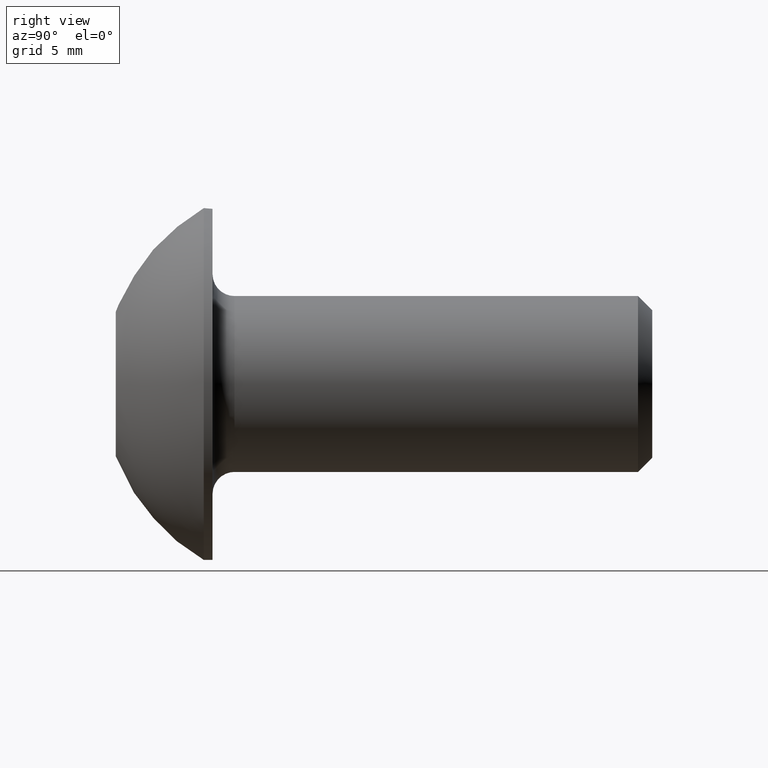
[diagram: clean part render]
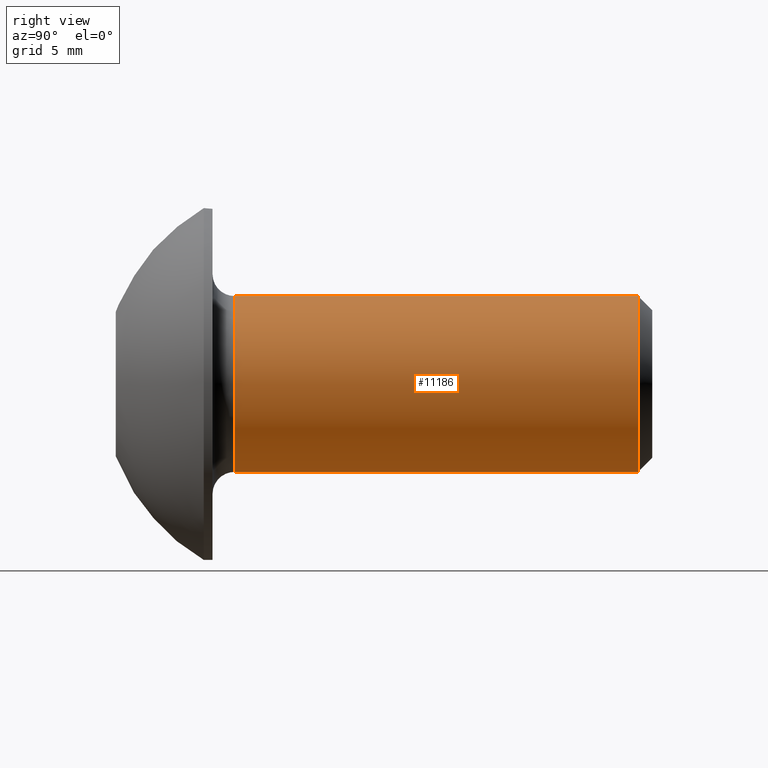
[diagram: same view with one face highlighted and labeled with its STEP entity id]
A machine part, right view. The second image highlights one B-rep face of the part: STEP entity #11186.
In plain terms, the highlighted cylindrical surface (bore or boss wall) has radius 4 mm, axis along (-0, -1, -0).
Its self-contained STEP definition (entity closure, byte-faithful):
#399 = DIRECTION ( 'NONE',  ( -0.000000000000000000, -1.000000000000000000, -0.000000000000000000 ) ) ;
#721 = AXIS2_PLACEMENT_3D ( 'NONE', #6130, #399, #8450 ) ;
#3008 = DIRECTION ( 'NONE',  ( 0.000000000000000000, 0.000000000000000000, -1.000000000000000000 ) ) ;
#3015 = CYLINDRICAL_SURFACE ( 'NONE', #721, 3.999999999999996447 ) ;
#3223 = DIRECTION ( 'NONE',  ( 0.000000000000000000, 1.000000000000000000, 0.000000000000000000 ) ) ;
#4105 = CARTESIAN_POINT ( 'NONE',  ( 0.000000000000000000, 23.75339999999999918, -3.999999999999994227 ) ) ;
#5575 = DIRECTION ( 'NONE',  ( -0.000000000000000000, -1.000000000000000000, -0.000000000000000000 ) ) ;
#5725 = AXIS2_PLACEMENT_3D ( 'NONE', #14935, #3223, #7966 ) ;
#6120 = VERTEX_POINT ( 'NONE', #4105 ) ;
#6130 = CARTESIAN_POINT ( 'NONE',  ( 0.000000000000000000, 0.000000000000000000, 0.000000000000000000 ) ) ;
#7966 = DIRECTION ( 'NONE',  ( 0.000000000000000000, 0.000000000000000000, -1.000000000000000000 ) ) ;
#8450 = DIRECTION ( 'NONE',  ( 0.000000000000000000, 0.000000000000000000, -1.000000000000000000 ) ) ;
#9227 = FACE_OUTER_BOUND ( 'NONE', #11956, .T. ) ;
#9393 = CIRCLE ( 'NONE', #5725, 3.999999999999996447 ) ;
#9752 = FACE_OUTER_BOUND ( 'NONE', #10533, .T. ) ;
#10533 = EDGE_LOOP ( 'NONE', ( #12776 ) ) ;
#10758 = EDGE_CURVE ( 'NONE', #14133, #14133, #9393, .T. ) ;
#10938 = EDGE_CURVE ( 'NONE', #6120, #6120, #13765, .T. ) ;
#11186 = ADVANCED_FACE ( 'NONE', ( #9752, #9227 ), #3015, .T. ) ;
#11444 = AXIS2_PLACEMENT_3D ( 'NONE', #14668, #5575, #3008 ) ;
#11956 = EDGE_LOOP ( 'NONE', ( #14430 ) ) ;
#12286 = CARTESIAN_POINT ( 'NONE',  ( 0.000000000000000000, 5.400000000000000355, -3.999999999999996447 ) ) ;
#12776 = ORIENTED_EDGE ( 'NONE', *, *, #10758, .T. ) ;
#13765 = CIRCLE ( 'NONE', #11444, 3.999999999999994227 ) ;
#14133 = VERTEX_POINT ( 'NONE', #12286 ) ;
#14430 = ORIENTED_EDGE ( 'NONE', *, *, #10938, .T. ) ;
#14668 = CARTESIAN_POINT ( 'NONE',  ( 0.000000000000000000, 23.75339999999999918, 0.000000000000000000 ) ) ;
#14935 = CARTESIAN_POINT ( 'NONE',  ( 0.000000000000000000, 5.400000000000000355, 0.000000000000000000 ) ) ;